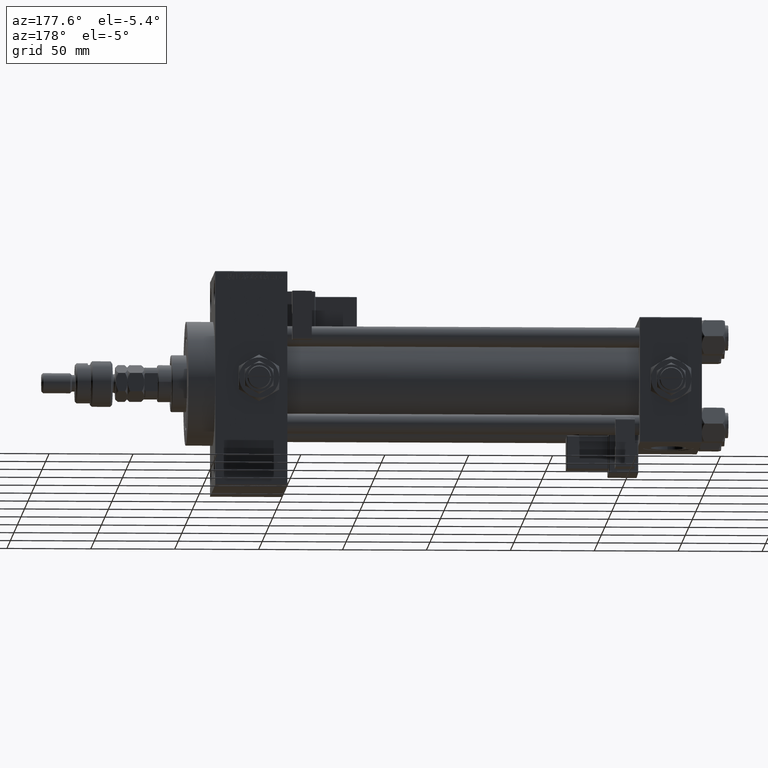
[diagram: clean part render]
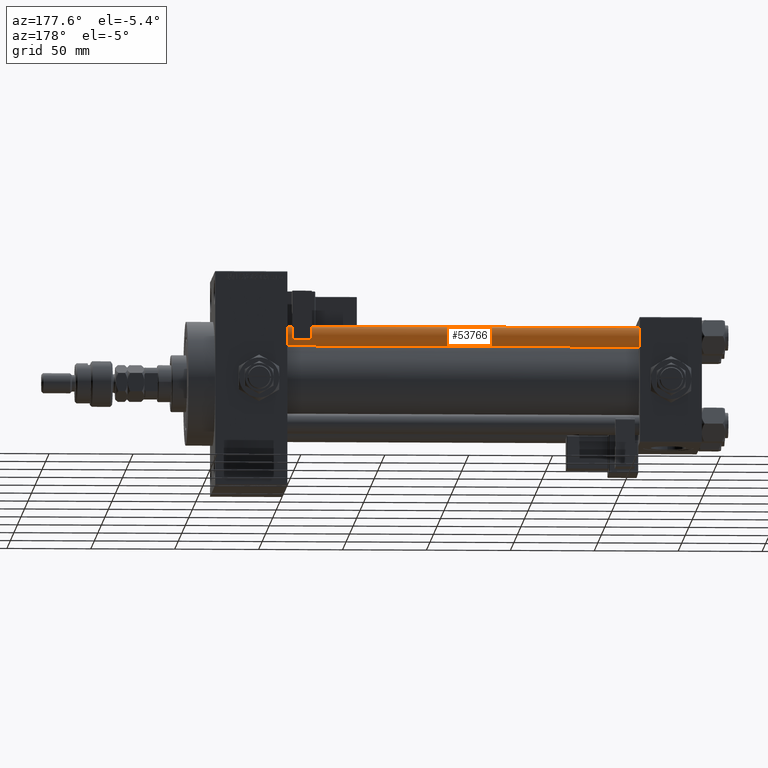
[diagram: same view with one face highlighted and labeled with its STEP entity id]
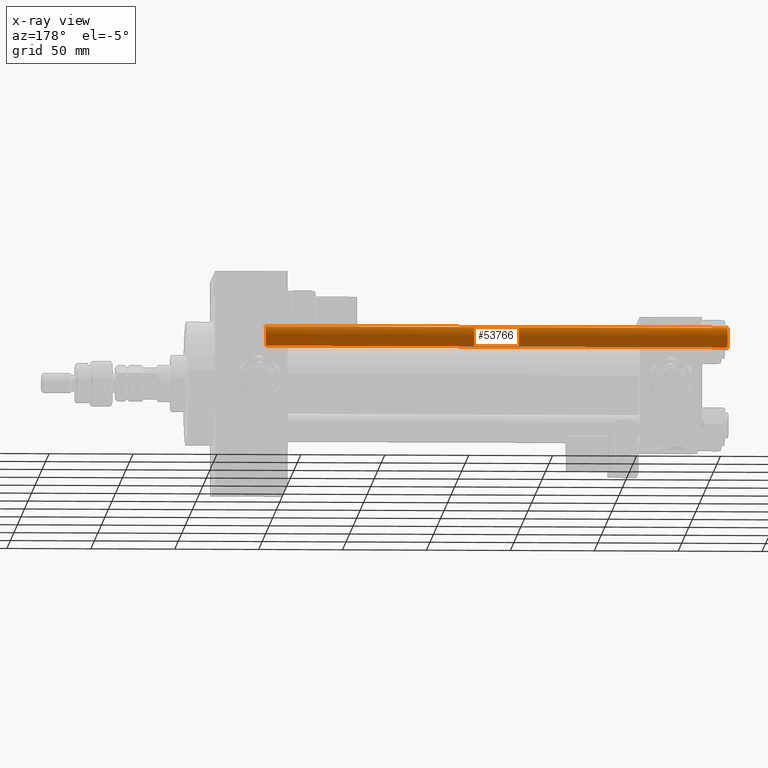
[diagram: x-ray of the same camera — body ghosted, the highlighted face saturated]
A machine part, auxiliary view. The second image highlights one B-rep face of the part: STEP entity #53766.
The next image is the same camera in x-ray: the body ghosted, the highlighted face saturated — about 0% of this face is hidden behind the body in this view.
In plain terms, the highlighted cylindrical surface (edge-blend (fillet) strip) has radius 6 mm, axis along (-1, -0, 0).
Its self-contained STEP definition (entity closure, byte-faithful):
#1091 = DIRECTION ( 'NONE',  ( 0.000000000000000000, 0.000000000000000000, -1.000000000000000000 ) ) ;
#2665 = ORIENTED_EDGE ( 'NONE', *, *, #44999, .T. ) ;
#4581 = EDGE_CURVE ( 'NONE', #53916, #53644, #50863, .T. ) ;
#4786 = DIRECTION ( 'NONE',  ( -0.000000000000000000, -0.000000000000000000, -1.000000000000000000 ) ) ;
#7175 = VERTEX_POINT ( 'NONE', #42342 ) ;
#11118 = AXIS2_PLACEMENT_3D ( 'NONE', #25633, #25098, #12150 ) ;
#11939 = VECTOR ( 'NONE', #4786, 1000.000000000000000 ) ;
#12150 = DIRECTION ( 'NONE',  ( -1.000000000000000000, 0.000000000000000000, 0.000000000000000000 ) ) ;
#12781 = DIRECTION ( 'NONE',  ( -0.000000000000000000, -0.000000000000000000, -1.000000000000000000 ) ) ;
#15970 = CIRCLE ( 'NONE', #53846, 6.000000000000000888 ) ;
#16922 = EDGE_CURVE ( 'NONE', #53916, #7175, #15970, .T. ) ;
#16952 = CARTESIAN_POINT ( 'NONE',  ( -6.000000000000000888, 0.000000000000000000, 276.0000000000000000 ) ) ;
#17926 = DIRECTION ( 'NONE',  ( 1.000000000000000000, 0.000000000000000000, 0.000000000000000000 ) ) ;
#18933 = EDGE_CURVE ( 'NONE', #7175, #21563, #20000, .T. ) ;
#20000 = LINE ( 'NONE', #50299, #39851 ) ;
#20904 = ORIENTED_EDGE ( 'NONE', *, *, #16922, .T. ) ;
#21563 = VERTEX_POINT ( 'NONE', #40255 ) ;
#25098 = DIRECTION ( 'NONE',  ( -0.000000000000000000, -0.000000000000000000, -1.000000000000000000 ) ) ;
#25633 = CARTESIAN_POINT ( 'NONE',  ( 0.000000000000000000, 0.000000000000000000, 276.0000000000000000 ) ) ;
#26253 = CARTESIAN_POINT ( 'NONE',  ( -6.000000000000000888, 0.000000000000000000, 0.5000000000000559552 ) ) ;
#27944 = DIRECTION ( 'NONE',  ( -0.000000000000000000, -0.000000000000000000, 1.000000000000000000 ) ) ;
#29242 = CYLINDRICAL_SURFACE ( 'NONE', #11118, 6.000000000000000888 ) ;
#31656 = ORIENTED_EDGE ( 'NONE', *, *, #18933, .T. ) ;
#32316 = ORIENTED_EDGE ( 'NONE', *, *, #4581, .F. ) ;
#39851 = VECTOR ( 'NONE', #12781, 1000.000000000000000 ) ;
#40096 = CIRCLE ( 'NONE', #45514, 6.000000000000000888 ) ;
#40255 = CARTESIAN_POINT ( 'NONE',  ( 6.000000000000000888, 7.347880794884120722E-16, 0.5000000000000559552 ) ) ;
#42342 = CARTESIAN_POINT ( 'NONE',  ( 6.000000000000000888, 7.347880794884120722E-16, 275.5000000000000568 ) ) ;
#44999 = EDGE_CURVE ( 'NONE', #21563, #53644, #40096, .T. ) ;
#45315 = CARTESIAN_POINT ( 'NONE',  ( 0.000000000000000000, 0.000000000000000000, 0.5000000000000559552 ) ) ;
#45514 = AXIS2_PLACEMENT_3D ( 'NONE', #45315, #27944, #48362 ) ;
#46881 = CARTESIAN_POINT ( 'NONE',  ( -6.000000000000000888, 0.000000000000000000, 275.5000000000000568 ) ) ;
#48362 = DIRECTION ( 'NONE',  ( 1.000000000000000000, 0.000000000000000000, 0.000000000000000000 ) ) ;
#49946 = FACE_OUTER_BOUND ( 'NONE', #51362, .T. ) ;
#50299 = CARTESIAN_POINT ( 'NONE',  ( 6.000000000000000888, 7.347880794884120722E-16, 276.0000000000000000 ) ) ;
#50863 = LINE ( 'NONE', #16952, #11939 ) ;
#51017 = CARTESIAN_POINT ( 'NONE',  ( 0.000000000000000000, 0.000000000000000000, 275.5000000000000568 ) ) ;
#51362 = EDGE_LOOP ( 'NONE', ( #20904, #31656, #2665, #32316 ) ) ;
#53644 = VERTEX_POINT ( 'NONE', #26253 ) ;
#53766 = ADVANCED_FACE ( 'NONE', ( #49946 ), #29242, .T. ) ;
#53846 = AXIS2_PLACEMENT_3D ( 'NONE', #51017, #1091, #17926 ) ;
#53916 = VERTEX_POINT ( 'NONE', #46881 ) ;